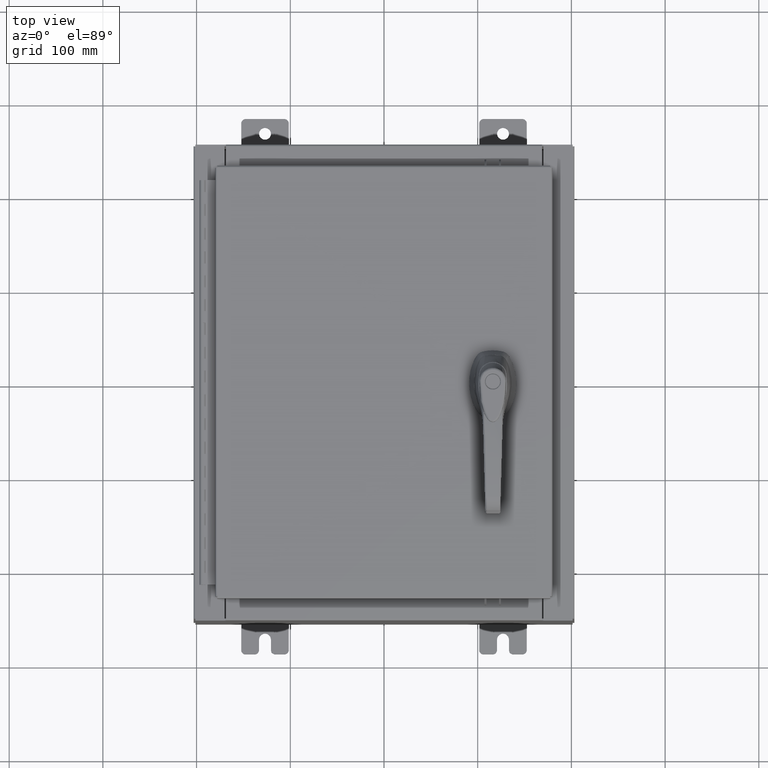
[diagram: clean part render]
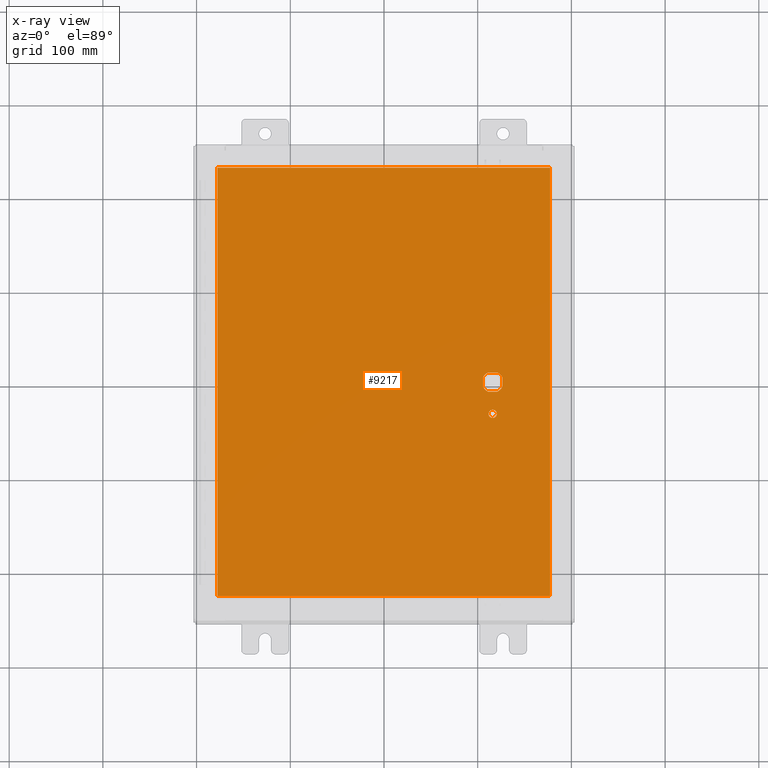
[diagram: x-ray — body ghosted, one internal face saturated and labeled with its STEP entity id]
A machine part, top view, then the same camera in x-ray: the body is ghosted and one INTERNAL B-rep face — a face not visible from any outside direction — is saturated and labeled: STEP entity #9217.
In plain terms, the highlighted planar face has unit normal (0, 0, -1).
Its self-contained STEP definition (entity closure, byte-faithful):
#324 = AXIS2_PLACEMENT_3D ( 'NONE', #108908, #58429, #7892 ) ;
#1910 = CARTESIAN_POINT ( 'NONE',  ( 4.980999999999927900, 0.0000000000000000000, -0.07470000000000003000 ) ) ;
#1922 = ORIENTED_EDGE ( 'NONE', *, *, #82862, .T. ) ;
#2693 = AXIS2_PLACEMENT_3D ( 'NONE', #28826, #87784, #37319 ) ;
#3770 = CARTESIAN_POINT ( 'NONE',  ( 4.578000000000002100, -1.338000000000000100, -0.07470000000000003000 ) ) ;
#3883 = VECTOR ( 'NONE', #60977, 39.37007874015748100 ) ;
#4189 = DIRECTION ( 'NONE',  ( -1.000000000000000000, 0.0000000000000000000, 0.0000000000000000000 ) ) ;
#4420 = EDGE_CURVE ( 'NONE', #30345, #16658, #56938, .T. ) ;
#5132 = CARTESIAN_POINT ( 'NONE',  ( 6.990300000000002200, -9.006299999999997800, -0.07470000000000021100 ) ) ;
#6999 = CIRCLE ( 'NONE', #87330, 0.1715000000000000700 ) ;
#7892 = DIRECTION ( 'NONE',  ( -1.000000000000000000, 8.881784197001256300E-016, 0.0000000000000000000 ) ) ;
#9099 = EDGE_LOOP ( 'NONE', ( #37711, #109060, #104657, #40613, #52285, #39821, #45836, #1922 ) ) ;
#9217 = ADVANCED_FACE ( 'NONE', ( #67107, #44673, #89503 ), #102809, .T. ) ;
#9693 = CARTESIAN_POINT ( 'NONE',  ( 4.749500000000002100, -1.338000000000000100, -0.07470000000000003000 ) ) ;
#10248 = VECTOR ( 'NONE', #18404, 39.37007874015748100 ) ;
#10801 = DIRECTION ( 'NONE',  ( 1.000000000000000000, -0.0000000000000000000, -0.0000000000000000000 ) ) ;
#11514 = ORIENTED_EDGE ( 'NONE', *, *, #15547, .T. ) ;
#12131 = VECTOR ( 'NONE', #48035, 39.37007874015748100 ) ;
#12315 = DIRECTION ( 'NONE',  ( -1.000000000000000000, 0.0000000000000000000, 0.0000000000000000000 ) ) ;
#14674 = VERTEX_POINT ( 'NONE', #87996 ) ;
#14909 = DIRECTION ( 'NONE',  ( 0.0000000000000000000, 1.000000000000000000, 0.0000000000000000000 ) ) ;
#15321 = CARTESIAN_POINT ( 'NONE',  ( 4.778227370756312100, -0.4029999999999252000, -0.07470000000000003000 ) ) ;
#15547 = EDGE_CURVE ( 'NONE', #90877, #72519, #6999, .T. ) ;
#15997 = VECTOR ( 'NONE', #52938, 39.37007874015748100 ) ;
#16314 = CIRCLE ( 'NONE', #47202, 0.4499999999999156900 ) ;
#16658 = VERTEX_POINT ( 'NONE', #17566 ) ;
#17272 = CARTESIAN_POINT ( 'NONE',  ( 4.175000000000076200, -0.2002273707563079800, -0.07470000000000003000 ) ) ;
#17566 = CARTESIAN_POINT ( 'NONE',  ( 6.990300000000001300, 9.006300000000001300, -0.07470000000000000300 ) ) ;
#18240 = VERTEX_POINT ( 'NONE', #17272 ) ;
#18404 = DIRECTION ( 'NONE',  ( 0.0000000000000000000, -1.000000000000000000, 0.0000000000000000000 ) ) ;
#18645 = LINE ( 'NONE', #94999, #15997 ) ;
#19590 = VERTEX_POINT ( 'NONE', #96038 ) ;
#20355 = CARTESIAN_POINT ( 'NONE',  ( 4.980999999999927900, -0.2002273707563080300, -0.07470000000000003000 ) ) ;
#21935 = DIRECTION ( 'NONE',  ( -0.0000000000000000000, -0.0000000000000000000, 1.000000000000000000 ) ) ;
#23085 = CARTESIAN_POINT ( 'NONE',  ( 4.578000000000002100, 0.0000000000000000000, -0.07470000000000003000 ) ) ;
#24587 = VECTOR ( 'NONE', #81668, 39.37007874015748100 ) ;
#25979 = CARTESIAN_POINT ( 'NONE',  ( 4.778227370756312100, 0.4029999999999250300, -0.07470000000000003000 ) ) ;
#27210 = CIRCLE ( 'NONE', #55636, 0.4499999999999156900 ) ;
#28790 = VECTOR ( 'NONE', #46720, 39.37007874015748100 ) ;
#28826 = CARTESIAN_POINT ( 'NONE',  ( 4.578000000000002100, -1.338000000000000100, -0.07470000000000003000 ) ) ;
#30157 = EDGE_CURVE ( 'NONE', #56442, #34521, #100032, .T. ) ;
#30345 = VERTEX_POINT ( 'NONE', #68668 ) ;
#31229 = CARTESIAN_POINT ( 'NONE',  ( 0.0000000000000000000, 0.4029999999999252000, -0.07470000000000003000 ) ) ;
#31487 = VERTEX_POINT ( 'NONE', #35550 ) ;
#31566 = DIRECTION ( 'NONE',  ( -1.000000000000000000, 0.0000000000000000000, 0.0000000000000000000 ) ) ;
#32916 = ORIENTED_EDGE ( 'NONE', *, *, #56796, .F. ) ;
#34521 = VERTEX_POINT ( 'NONE', #20355 ) ;
#35550 = CARTESIAN_POINT ( 'NONE',  ( -6.990299999999996800, -9.006299999999997800, -0.07470000000000000300 ) ) ;
#37319 = DIRECTION ( 'NONE',  ( -1.000000000000000000, 0.0000000000000000000, 0.0000000000000000000 ) ) ;
#37711 = ORIENTED_EDGE ( 'NONE', *, *, #30157, .T. ) ;
#39564 = CARTESIAN_POINT ( 'NONE',  ( 6.990300000000002200, 9.006300000000001300, -0.07470000000000076600 ) ) ;
#39821 = ORIENTED_EDGE ( 'NONE', *, *, #86248, .T. ) ;
#40613 = ORIENTED_EDGE ( 'NONE', *, *, #107824, .T. ) ;
#43548 = LINE ( 'NONE', #1910, #3883 ) ;
#44673 = FACE_OUTER_BOUND ( 'NONE', #52776, .T. ) ;
#45347 = VERTEX_POINT ( 'NONE', #99487 ) ;
#45836 = ORIENTED_EDGE ( 'NONE', *, *, #60391, .T. ) ;
#46720 = DIRECTION ( 'NONE',  ( 0.0000000000000000000, -1.000000000000000000, 0.0000000000000000000 ) ) ;
#47202 = AXIS2_PLACEMENT_3D ( 'NONE', #72396, #21935, #80870 ) ;
#48035 = DIRECTION ( 'NONE',  ( -1.000000000000000000, -0.0000000000000000000, -0.0000000000000000000 ) ) ;
#48839 = EDGE_CURVE ( 'NONE', #19590, #61477, #16314, .T. ) ;
#49463 = ORIENTED_EDGE ( 'NONE', *, *, #75520, .F. ) ;
#49618 = LINE ( 'NONE', #31229, #24587 ) ;
#50002 = DIRECTION ( 'NONE',  ( 0.0000000000000000000, 0.0000000000000000000, -1.000000000000000000 ) ) ;
#51648 = VERTEX_POINT ( 'NONE', #25979 ) ;
#52285 = ORIENTED_EDGE ( 'NONE', *, *, #48839, .T. ) ;
#52776 = EDGE_LOOP ( 'NONE', ( #72313, #49463, #32916, #88841 ) ) ;
#52938 = DIRECTION ( 'NONE',  ( 1.000000000000000000, 0.0000000000000000000, 0.0000000000000000000 ) ) ;
#53939 = VERTEX_POINT ( 'NONE', #83005 ) ;
#53984 = AXIS2_PLACEMENT_3D ( 'NONE', #23085, #82023, #31566 ) ;
#54702 = DIRECTION ( 'NONE',  ( -0.0000000000000000000, -0.0000000000000000000, 1.000000000000000000 ) ) ;
#55073 = LINE ( 'NONE', #77329, #10248 ) ;
#55636 = AXIS2_PLACEMENT_3D ( 'NONE', #105228, #54702, #4189 ) ;
#56442 = VERTEX_POINT ( 'NONE', #15321 ) ;
#56796 = EDGE_CURVE ( 'NONE', #53939, #31487, #55073, .T. ) ;
#56938 = LINE ( 'NONE', #5132, #96501 ) ;
#56999 = LINE ( 'NONE', #39564, #12131 ) ;
#58429 = DIRECTION ( 'NONE',  ( -0.0000000000000000000, -0.0000000000000000000, 1.000000000000000000 ) ) ;
#60391 = EDGE_CURVE ( 'NONE', #18240, #45347, #70675, .T. ) ;
#60977 = DIRECTION ( 'NONE',  ( 0.0000000000000000000, -1.000000000000000000, 0.0000000000000000000 ) ) ;
#61283 = EDGE_LOOP ( 'NONE', ( #97853, #11514 ) ) ;
#61477 = VERTEX_POINT ( 'NONE', #88086 ) ;
#62791 = DIRECTION ( 'NONE',  ( -0.0000000000000000000, -0.0000000000000000000, 1.000000000000000000 ) ) ;
#67107 = FACE_BOUND ( 'NONE', #61283, .T. ) ;
#68668 = CARTESIAN_POINT ( 'NONE',  ( 6.990300000000002200, -9.006299999999997800, -0.07470000000000000300 ) ) ;
#70675 = CIRCLE ( 'NONE', #324, 0.4499999999999156900 ) ;
#72313 = ORIENTED_EDGE ( 'NONE', *, *, #4420, .F. ) ;
#72396 = CARTESIAN_POINT ( 'NONE',  ( 4.578000000000002100, 0.0000000000000000000, -0.07470000000000003000 ) ) ;
#72519 = VERTEX_POINT ( 'NONE', #9693 ) ;
#75520 = EDGE_CURVE ( 'NONE', #31487, #30345, #107742, .T. ) ;
#76753 = CARTESIAN_POINT ( 'NONE',  ( 4.406500000000002100, -1.338000000000000100, -0.07470000000000003000 ) ) ;
#77329 = CARTESIAN_POINT ( 'NONE',  ( -6.990299999999997700, 9.006300000000001300, -0.07470000000000019700 ) ) ;
#80870 = DIRECTION ( 'NONE',  ( -1.000000000000000000, 0.0000000000000000000, 0.0000000000000000000 ) ) ;
#81668 = DIRECTION ( 'NONE',  ( -1.000000000000000000, 0.0000000000000000000, 0.0000000000000000000 ) ) ;
#82023 = DIRECTION ( 'NONE',  ( -0.0000000000000000000, -0.0000000000000000000, 1.000000000000000000 ) ) ;
#82862 = EDGE_CURVE ( 'NONE', #45347, #56442, #18645, .T. ) ;
#83005 = CARTESIAN_POINT ( 'NONE',  ( -6.990299999999997700, 9.006299999999999500, -0.07470000000000000300 ) ) ;
#85351 = EDGE_CURVE ( 'NONE', #72519, #90877, #102926, .T. ) ;
#86248 = EDGE_CURVE ( 'NONE', #61477, #18240, #93405, .T. ) ;
#87182 = CARTESIAN_POINT ( 'NONE',  ( 0.0000000000000000000, 0.0000000000000000000, -0.07470000000000000300 ) ) ;
#87330 = AXIS2_PLACEMENT_3D ( 'NONE', #3770, #62791, #12315 ) ;
#87784 = DIRECTION ( 'NONE',  ( -0.0000000000000000000, -0.0000000000000000000, 1.000000000000000000 ) ) ;
#87996 = CARTESIAN_POINT ( 'NONE',  ( 4.980999999999927900, 0.2002273707563080300, -0.07470000000000003000 ) ) ;
#88086 = CARTESIAN_POINT ( 'NONE',  ( 4.175000000000076200, 0.2002273707563080300, -0.07470000000000003000 ) ) ;
#88841 = ORIENTED_EDGE ( 'NONE', *, *, #99724, .F. ) ;
#89503 = FACE_BOUND ( 'NONE', #9099, .T. ) ;
#90609 = VECTOR ( 'NONE', #10801, 39.37007874015748100 ) ;
#90877 = VERTEX_POINT ( 'NONE', #76753 ) ;
#92177 = DIRECTION ( 'NONE',  ( -1.000000000000000000, 0.0000000000000000000, -0.0000000000000000000 ) ) ;
#92494 = AXIS2_PLACEMENT_3D ( 'NONE', #87182, #50002, #92177 ) ;
#93405 = LINE ( 'NONE', #105688, #28790 ) ;
#94853 = CARTESIAN_POINT ( 'NONE',  ( -6.990299999999997700, -9.006299999999997800, -0.07470000000000021100 ) ) ;
#94999 = CARTESIAN_POINT ( 'NONE',  ( 0.0000000000000000000, -0.4029999999999252000, -0.07470000000000003000 ) ) ;
#96038 = CARTESIAN_POINT ( 'NONE',  ( 4.377772629243692900, 0.4029999999999252000, -0.07470000000000003000 ) ) ;
#96501 = VECTOR ( 'NONE', #14909, 39.37007874015748100 ) ;
#97546 = EDGE_CURVE ( 'NONE', #14674, #34521, #43548, .T. ) ;
#97853 = ORIENTED_EDGE ( 'NONE', *, *, #85351, .T. ) ;
#99487 = CARTESIAN_POINT ( 'NONE',  ( 4.377772629243692900, -0.4029999999999250300, -0.07470000000000003000 ) ) ;
#99724 = EDGE_CURVE ( 'NONE', #16658, #53939, #56999, .T. ) ;
#100032 = CIRCLE ( 'NONE', #53984, 0.4499999999999156900 ) ;
#102809 = PLANE ( 'NONE',  #92494 ) ;
#102926 = CIRCLE ( 'NONE', #2693, 0.1715000000000000700 ) ;
#104657 = ORIENTED_EDGE ( 'NONE', *, *, #107707, .T. ) ;
#105228 = CARTESIAN_POINT ( 'NONE',  ( 4.578000000000002100, 0.0000000000000000000, -0.07470000000000003000 ) ) ;
#105688 = CARTESIAN_POINT ( 'NONE',  ( 4.175000000000076200, 0.0000000000000000000, -0.07470000000000003000 ) ) ;
#107707 = EDGE_CURVE ( 'NONE', #14674, #51648, #27210, .T. ) ;
#107742 = LINE ( 'NONE', #94853, #90609 ) ;
#107824 = EDGE_CURVE ( 'NONE', #51648, #19590, #49618, .T. ) ;
#108908 = CARTESIAN_POINT ( 'NONE',  ( 4.578000000000002100, 0.0000000000000000000, -0.07470000000000003000 ) ) ;
#109060 = ORIENTED_EDGE ( 'NONE', *, *, #97546, .F. ) ;